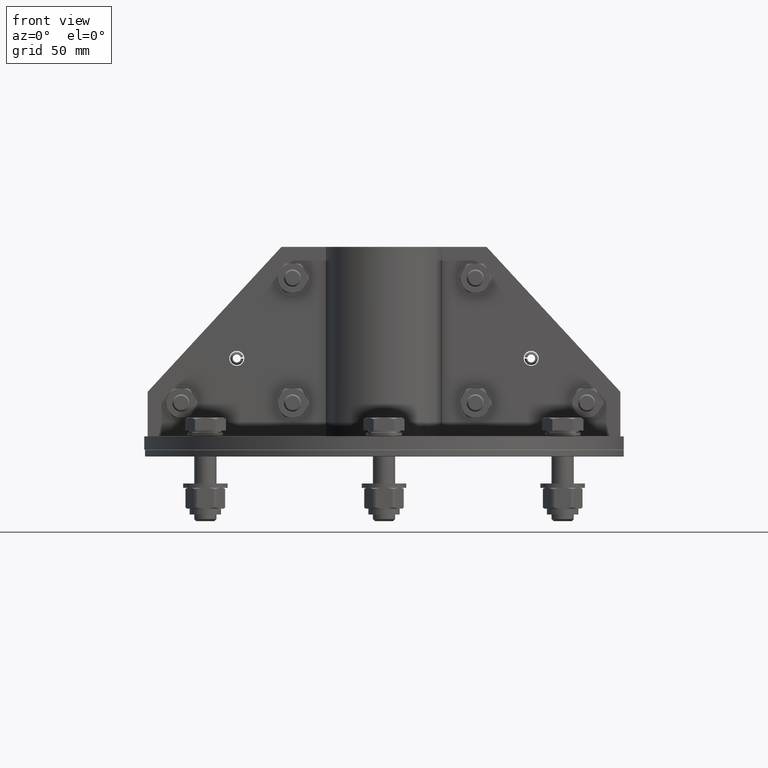
[diagram: clean part render]
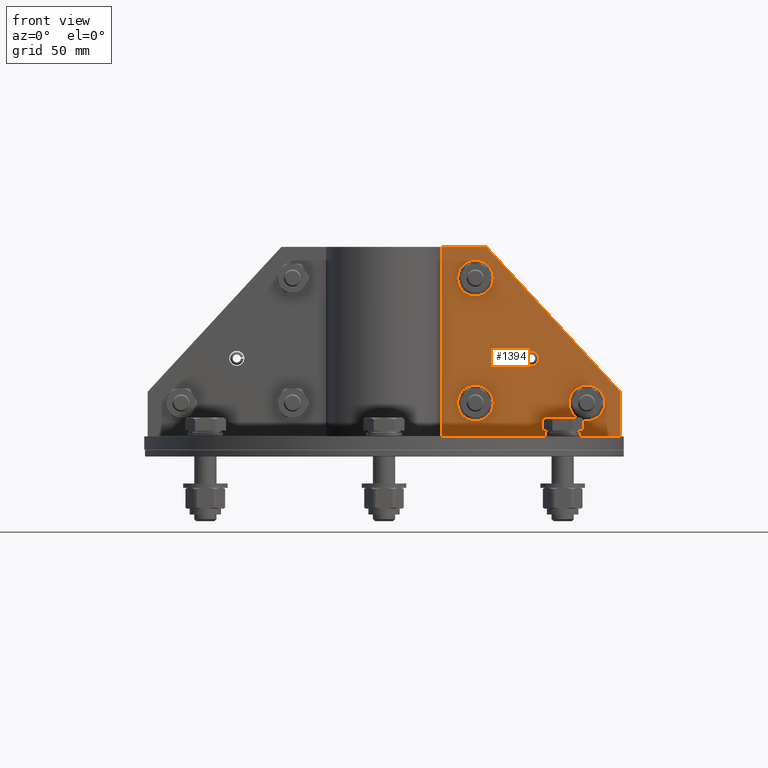
[diagram: same view with one face highlighted and labeled with its STEP entity id]
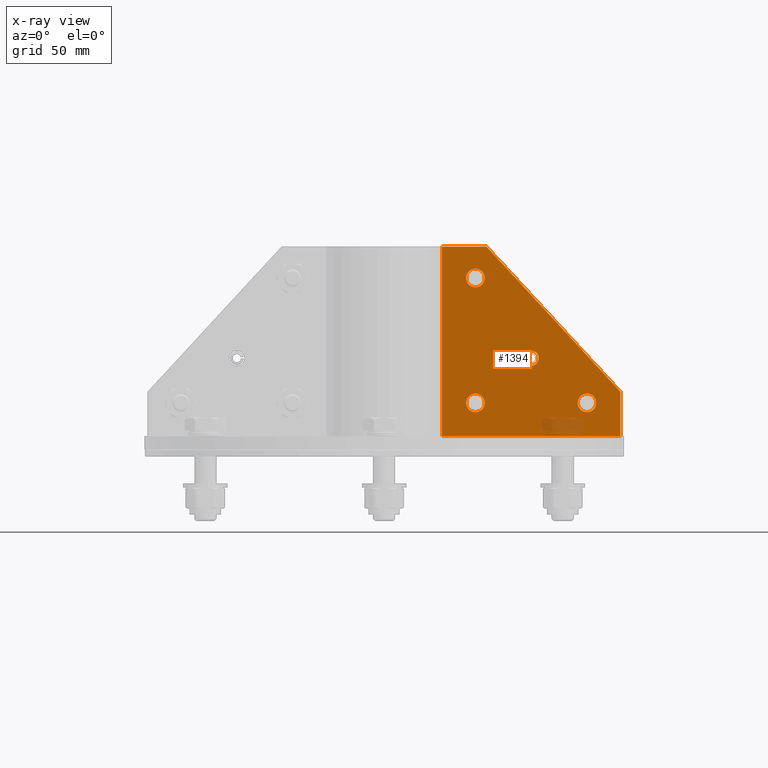
[diagram: x-ray of the same camera — body ghosted, the highlighted face saturated]
A machine part, front view. The second image highlights one B-rep face of the part: STEP entity #1394.
The next image is the same camera in x-ray: the body ghosted, the highlighted face saturated — about 3% of this face is hidden behind the body in this view.
In plain terms, the highlighted planar face has unit normal (0, -1, 0).
Its self-contained STEP definition (entity closure, byte-faithful):
#1094=CARTESIAN_POINT('',(19.149999999999999,71.0,3.0));
#1095=VERTEX_POINT('',#1094);
#1096=CARTESIAN_POINT('',(15.0,71.0,3.0));
#1097=DIRECTION('',(0.0,0.0,-1.0));
#1098=DIRECTION('',(-1.0,0.0,0.0));
#1099=AXIS2_PLACEMENT_3D('',#1096,#1097,#1098);
#1100=CIRCLE('',#1099,4.15);
#1101=EDGE_CURVE('',#1095,#1095,#1100,.T.);
#1122=CARTESIAN_POINT('',(69.150000000000006,15.000000000000002,3.0));
#1123=VERTEX_POINT('',#1122);
#1124=CARTESIAN_POINT('',(65.0,15.000000000000002,3.0));
#1125=DIRECTION('',(0.0,0.0,-1.0));
#1126=DIRECTION('',(-1.0,0.0,0.0));
#1127=AXIS2_PLACEMENT_3D('',#1124,#1125,#1126);
#1128=CIRCLE('',#1127,4.15);
#1129=EDGE_CURVE('',#1123,#1123,#1128,.T.);
#1150=CARTESIAN_POINT('',(19.149999999999999,15.000000000000002,3.0));
#1151=VERTEX_POINT('',#1150);
#1152=CARTESIAN_POINT('',(15.0,15.000000000000002,3.0));
#1153=DIRECTION('',(0.0,0.0,-1.0));
#1154=DIRECTION('',(-1.0,0.0,0.0));
#1155=AXIS2_PLACEMENT_3D('',#1152,#1153,#1154);
#1156=CIRCLE('',#1155,4.15);
#1157=EDGE_CURVE('',#1151,#1151,#1156,.T.);
#1178=CARTESIAN_POINT('',(43.350000000000001,35.0,3.0));
#1179=VERTEX_POINT('',#1178);
#1180=CARTESIAN_POINT('',(40.0,35.0,3.0));
#1181=DIRECTION('',(0.0,0.0,-1.0));
#1182=DIRECTION('',(-1.0,0.0,0.0));
#1183=AXIS2_PLACEMENT_3D('',#1180,#1181,#1182);
#1184=CIRCLE('',#1183,3.35);
#1185=EDGE_CURVE('',#1179,#1179,#1184,.T.);
#1255=CARTESIAN_POINT('',(0.0,85.0,3.0));
#1256=VERTEX_POINT('',#1255);
#1257=CARTESIAN_POINT('',(20.0,85.0,3.0));
#1258=VERTEX_POINT('',#1257);
#1259=CARTESIAN_POINT('',(0.0,85.0,3.0));
#1260=DIRECTION('',(1.0,0.0,0.0));
#1261=VECTOR('',#1260,20.0);
#1262=LINE('',#1259,#1261);
#1263=EDGE_CURVE('',#1256,#1258,#1262,.T.);
#1286=CARTESIAN_POINT('',(80.0,20.000000000000014,3.0));
#1287=VERTEX_POINT('',#1286);
#1288=CARTESIAN_POINT('',(20.0,85.0,3.0));
#1289=DIRECTION('',(0.678280102733066,-0.734803444627488,0.0));
#1290=VECTOR('',#1289,88.459030064770658);
#1291=LINE('',#1288,#1290);
#1292=EDGE_CURVE('',#1258,#1287,#1291,.T.);
#1310=CARTESIAN_POINT('',(80.0,1.469576E-014,3.0));
#1311=VERTEX_POINT('',#1310);
#1312=CARTESIAN_POINT('',(80.0,20.000000000000014,3.0));
#1313=DIRECTION('',(0.0,-1.0,0.0));
#1314=VECTOR('',#1313,19.999999999999996);
#1315=LINE('',#1312,#1314);
#1316=EDGE_CURVE('',#1287,#1311,#1315,.T.);
#1334=CARTESIAN_POINT('',(0.0,0.0,3.0));
#1335=VERTEX_POINT('',#1334);
#1336=CARTESIAN_POINT('',(80.0,1.469576E-014,3.0));
#1337=DIRECTION('',(-1.0,0.0,0.0));
#1338=VECTOR('',#1337,80.0);
#1339=LINE('',#1336,#1338);
#1340=EDGE_CURVE('',#1311,#1335,#1339,.T.);
#1358=CARTESIAN_POINT('',(0.0,0.0,3.0));
#1359=DIRECTION('',(0.0,1.0,0.0));
#1360=VECTOR('',#1359,85.0);
#1361=LINE('',#1358,#1360);
#1362=EDGE_CURVE('',#1335,#1256,#1361,.T.);
#1370=CARTESIAN_POINT('',(32.109938825732343,34.609938825732343,3.0));
#1371=DIRECTION('',(0.0,0.0,1.0));
#1372=DIRECTION('',(1.0,0.0,0.0));
#1373=AXIS2_PLACEMENT_3D('',#1370,#1371,#1372);
#1374=PLANE('',#1373);
#1375=ORIENTED_EDGE('',*,*,#1263,.F.);
#1376=ORIENTED_EDGE('',*,*,#1362,.F.);
#1377=ORIENTED_EDGE('',*,*,#1340,.F.);
#1378=ORIENTED_EDGE('',*,*,#1316,.F.);
#1379=ORIENTED_EDGE('',*,*,#1292,.F.);
#1380=EDGE_LOOP('',(#1375,#1376,#1377,#1378,#1379));
#1381=FACE_OUTER_BOUND('',#1380,.T.);
#1382=ORIENTED_EDGE('',*,*,#1101,.T.);
#1383=EDGE_LOOP('',(#1382));
#1384=FACE_BOUND('',#1383,.T.);
#1385=ORIENTED_EDGE('',*,*,#1129,.T.);
#1386=EDGE_LOOP('',(#1385));
#1387=FACE_BOUND('',#1386,.T.);
#1388=ORIENTED_EDGE('',*,*,#1157,.T.);
#1389=EDGE_LOOP('',(#1388));
#1390=FACE_BOUND('',#1389,.T.);
#1391=ORIENTED_EDGE('',*,*,#1185,.T.);
#1392=EDGE_LOOP('',(#1391));
#1393=FACE_BOUND('',#1392,.T.);
#1394=ADVANCED_FACE('',(#1381,#1384,#1387,#1390,#1393),#1374,.T.);